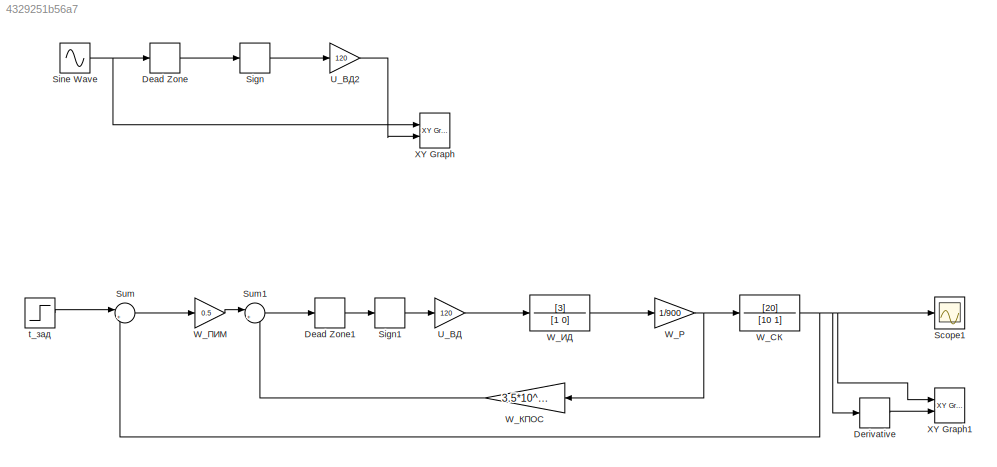
MODEL slx_4329251b56a7
KIND model
CONFIG AbsTol = auto
CONFIG EnableMultiTasking = off
CONFIG FixedStep = auto
CONFIG MaxStep = auto
CONFIG MinStep = auto
CONFIG RelTol = 1e-3
CONFIG SampleTimeConstraint = Unconstrained
CONFIG SolverName = VariableStepAuto
CONFIG StartTime = 0.0
CONFIG StopTime = 160
BLOCK [DeadZone] Dead Zone
  Commented = on
  LowerValue = -0.3
  UpperValue = 0.3
BLOCK [DeadZone] Dead Zone1
  LowerValue = -0.3
  UpperValue = 0.3
BLOCK [Derivative] Derivative
BLOCK [Scope] Scope1
  Floating = off
  NumInputPorts = 1
  Ports = [1]
  ScopeSpecificationString = Simulink.scopes.TimeScopeBlockCfg('CurrentConfiguration', extmgr.ConfigurationSet(extmgr.Configuration('Core','General UI',true,'FigureColor',[1 1 1]),extmgr.Configuration('Core','Source UI',true),extmgr.Configuration('Sources','WiredSimulink',true,'DataLoggingVariableName','ScopeData1'),extmgr.Configuration('Visuals','Time Domain',true,'SerializedDisplays',{struct('MinYLimReal','-14.98587','MaxYL...<+1597ch>
BLOCK [Signum] Sign
  Commented = on
BLOCK [Signum] Sign1
BLOCK [Sin] Sine Wave
  Commented = on
  Ports = [0, 1]
  SampleTime = 0
BLOCK [Sum] Sum
  Inputs = |+-
  Ports = [2, 1]
BLOCK [Sum] Sum1
  Inputs = |+-
  Ports = [2, 1]
BLOCK [Gain] U_ВД
  Gain = 120
BLOCK [Gain] U_ВД2
  Commented = on
  Gain = 120
BLOCK [TransferFcn] W_ИД
  Denominator = [1 0]
  Numerator = [3]
BLOCK [Gain] W_КПОС
  Gain = 3.5*10^-3
  NameLocation = top
BLOCK [Gain] W_ПИМ
  Gain = 0.5
BLOCK [Gain] W_Р
  Gain = 1/900
BLOCK [TransferFcn] W_СК
  Denominator = [10 1]
  Numerator = [20]
BLOCK [Reference] XY Graph  REF=simulink/Sinks/XY Graph
  Commented = on
  Ports = [2]
  SourceBlock = simulink/Sinks/XY Graph
  SourceProductBaseCode = SL
  SourceType = XY scope.
BLOCK [Reference] XY Graph1  REF=simulink/Sinks/XY Graph
  Ports = [2]
  SourceBlock = simulink/Sinks/XY Graph
  SourceProductBaseCode = SL
  SourceType = XY scope.
BLOCK [Step] t_зад
  After = 100
  SampleTime = 0
  Time = 0
LINE Dead Zone1:1 -> Sign1:1
LINE Dead Zone:1 -> Sign:1
LINE Derivative:1 -> XY Graph1:2
LINE Sign1:1 -> U_ВД:1
LINE Sign:1 -> U_ВД2:1
NET Sine Wave:1 -> Dead Zone:1, XY Graph:1
LINE Sum1:1 -> Dead Zone1:1
LINE Sum:1 -> W_ПИМ:1
LINE U_ВД2:1 -> XY Graph:2
LINE U_ВД:1 -> W_ИД:1
LINE W_ИД:1 -> W_Р:1
LINE W_КПОС:1 -> Sum1:2
LINE W_ПИМ:1 -> Sum1:1
NET W_Р:1 -> W_КПОС:1, W_СК:1
NET W_СК:1 -> Derivative:1, Scope1:1, Sum:2, XY Graph1:1
LINE t_зад:1 -> Sum:1
note: NET lines group one-source signal fan-out (src -> all destinations, sorted); 1:1 wires keep LINE
